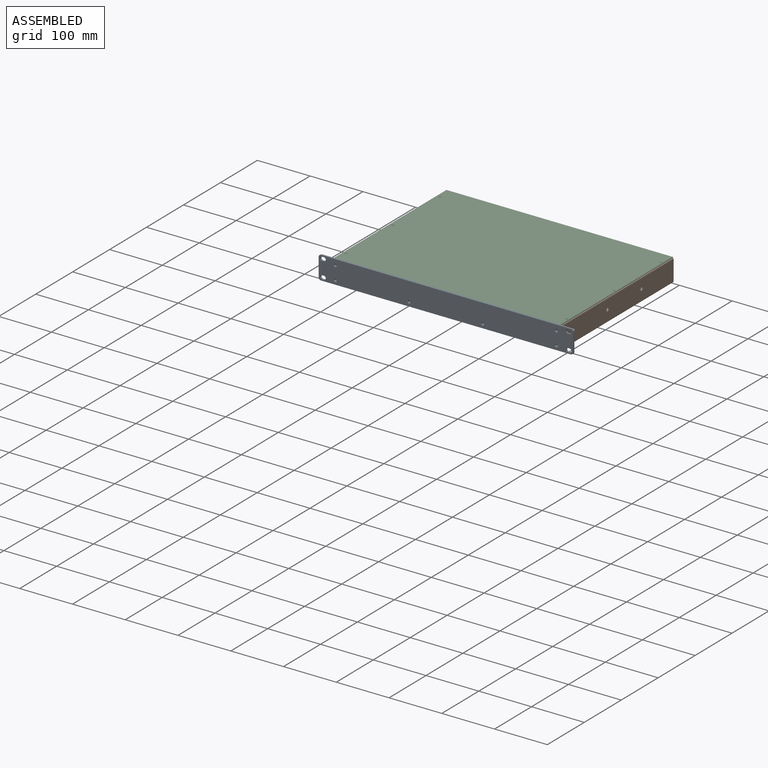
[diagram: assembled view]
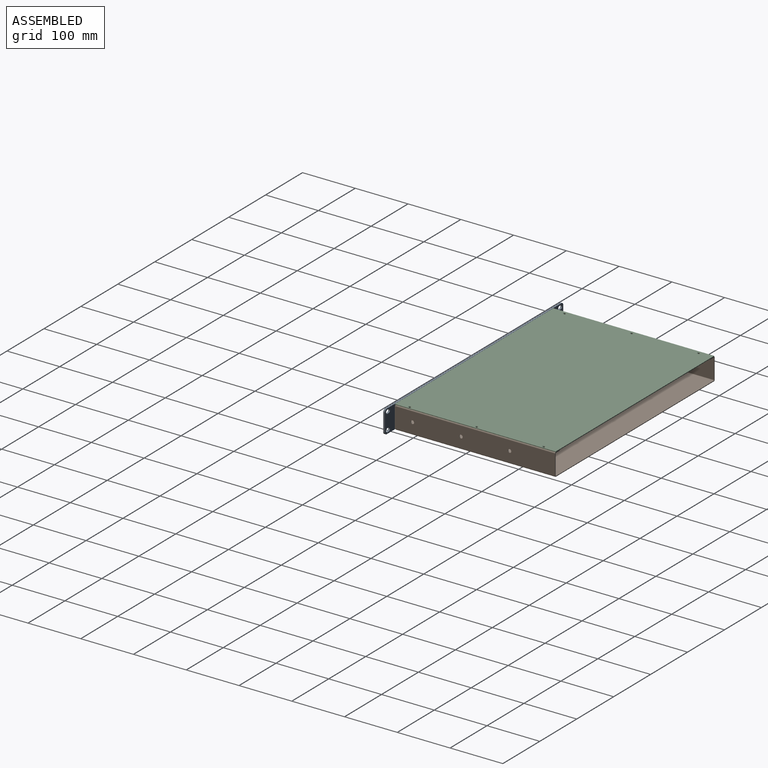
[diagram: assembled view, second angle]
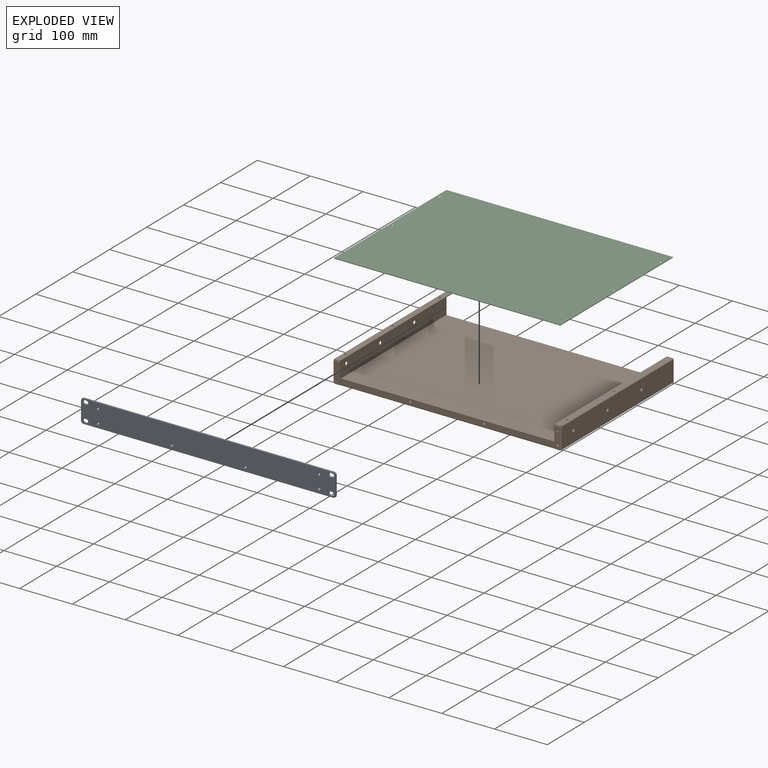
[diagram: exploded view]
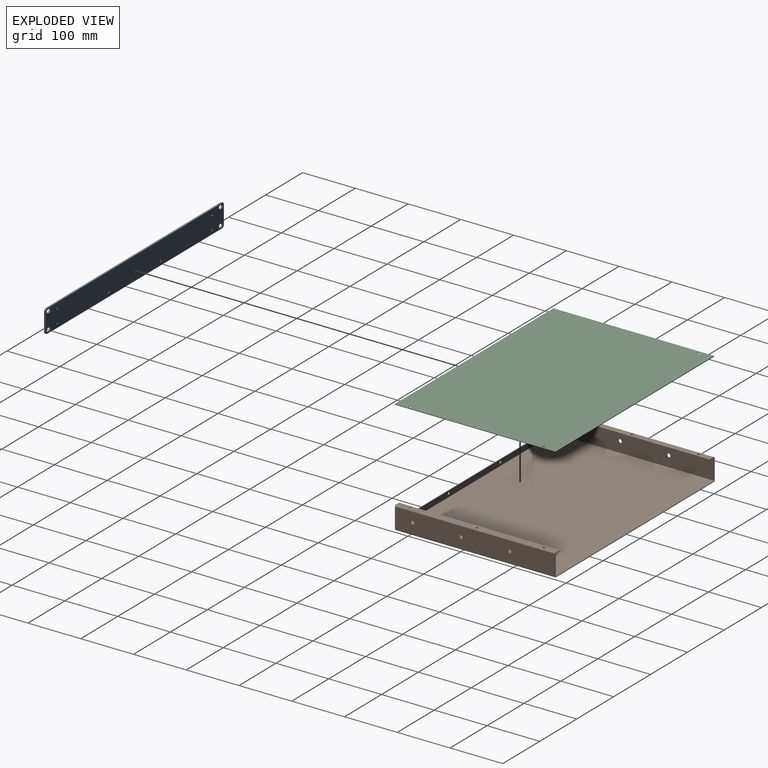
[diagram: exploded view, second angle]
ASSEMBLY  parts=3 mates=5
PART A: 38 faces, bbox 482.6x43.7x3.2 mm
  f0: plane 482.6x43.69mm, normal (0,0,1), area 20648.1mm2, adj f2,f3,f4,f5,f6,f7,f8,f9
  f1: plane 482.6x43.69mm, normal (0,0,-1), area 20756.4mm2, adj f2,f3,f4,f5,f6,f7,f8,f9
  f2: cylinder r=4.75mm len=4.75mm, axis (0,0,-1), area 23.7mm2, adj f0,f1,f3,f9
  f3: plane 473.1x3.18mm, normal (0,1,0), area 1502.1mm2, adj f0,f1,f2,f4
  f4: cylinder r=4.75mm len=4.75mm, axis (0,0,-1), area 23.7mm2, adj f0,f1,f3,f5
  f5: plane 34.19x3.18mm, normal (-1,0,0), area 108.5mm2, adj f0,f1,f4,f6
  f6: cylinder r=4.75mm len=4.75mm, axis (0,0,-1), area 23.7mm2, adj f0,f1,f5,f7
  f7: plane 473.1x3.18mm, normal (0,-1,0), area 1502.1mm2, adj f0,f1,f6,f8
  f8: cylinder r=4.75mm len=4.75mm, axis (0,0,-1), area 23.7mm2, adj f0,f1,f7,f9
  f9: plane 34.19x3.18mm, normal (1,0,0), area 108.5mm2, adj f0,f1,f2,f8
  f10: cylinder r=3.53mm len=7.06mm, axis (0,0,1), area 35.2mm2, adj f0,f1,f11,f13
  f11: plane 3.25x3.18mm, normal (0,-1,0), area 10.3mm2, adj f0,f1,f10,f12
  f12: cylinder r=3.53mm len=7.06mm, axis (0,0,1), area 35.2mm2, adj f0,f1,f11,f13
  f13: plane 3.25x3.18mm, normal (0,1,0), area 10.3mm2, adj f0,f1,f10,f12
  f14: cylinder r=3.53mm len=7.06mm, axis (0,0,1), area 35.2mm2, adj f0,f1,f15,f17
  f15: plane 3.25x3.18mm, normal (0,-1,0), area 10.3mm2, adj f0,f1,f14,f16
  f16: cylinder r=3.53mm len=7.06mm, axis (0,0,1), area 35.2mm2, adj f0,f1,f15,f17
  f17: plane 3.25x3.18mm, normal (0,1,0), area 10.3mm2, adj f0,f1,f14,f16
  f18: cylinder r=3.53mm len=7.06mm, axis (0,0,1), area 35.2mm2, adj f0,f1,f19,f21
  f19: plane 3.25x3.18mm, normal (0,-1,0), area 10.3mm2, adj f0,f1,f18,f20
  f20: cylinder r=3.53mm len=7.06mm, axis (0,0,1), area 35.2mm2, adj f0,f1,f19,f21
  f21: plane 3.25x3.18mm, normal (0,1,0), area 10.3mm2, adj f0,f1,f18,f20
  f22: cylinder r=3.53mm len=7.06mm, axis (0,0,1), area 35.2mm2, adj f0,f1,f23,f25
  f23: plane 3.25x3.18mm, normal (0,-1,0), area 10.3mm2, adj f0,f1,f22,f24
  f24: cylinder r=3.53mm len=7.06mm, axis (0,0,1), area 35.2mm2, adj f0,f1,f23,f25
  f25: plane 3.25x3.18mm, normal (0,1,0), area 10.3mm2, adj f0,f1,f22,f24
  f26: cylinder r=1.78mm len=3.56mm, axis (0,0,1), area 24.2mm2, adj f1,f27
  f27: cone r=1.78mm half-angle=50deg, axis (0,0,1), area 23.6mm2, adj f0,f26
  f28: cylinder r=1.78mm len=3.56mm, axis (0,0,1), area 24.2mm2, adj f1,f29
  f29: cone r=1.78mm half-angle=50deg, axis (0,0,1), area 23.6mm2, adj f0,f28
  f30: cylinder r=1.78mm len=3.56mm, axis (0,0,1), area 24.2mm2, adj f1,f31
  f31: cone r=1.78mm half-angle=50deg, axis (0,0,1), area 23.6mm2, adj f0,f30
  f32: cylinder r=1.78mm len=3.56mm, axis (0,0,1), area 24.2mm2, adj f1,f33
  f33: cone r=1.78mm half-angle=50deg, axis (0,0,1), area 23.6mm2, adj f0,f32
  f34: cylinder r=1.78mm len=3.56mm, axis (0,0,1), area 24.2mm2, adj f1,f35
  f35: cone r=1.78mm half-angle=50deg, axis (0,0,1), area 23.6mm2, adj f0,f34
  f36: cylinder r=1.78mm len=3.56mm, axis (0,0,1), area 24.2mm2, adj f1,f37
  f37: cone r=1.78mm half-angle=50deg, axis (0,0,1), area 23.6mm2, adj f0,f36
PART B: 94 faces, bbox 431.8x304.8x42.2 mm
  f0: plane 1.4x1.27mm, normal (-1,0,0), area 1.8mm2, adj f2,f3,f4,f80
  f1: plane 10.08x1.27mm, normal (0,-1,0), area 12.8mm2, adj f2,f3,f6,f11
  f2: plane 427.74x304.17mm, normal (0,0,-1), area 129530.2mm2, adj f0,f1,f4,f5,f6,f7,f8,f9
  f3: plane 427.74x304.17mm, normal (0,0,1), area 129530.2mm2, adj f0,f1,f4,f5,f6,f7,f8,f9
  f4: plane 10.08x1.27mm, normal (0,-1,0), area 12.8mm2, adj f0,f2,f3,f7
  f5: plane 427.74x1.27mm, normal (0,1,0), area 543.2mm2, adj f2,f3,f45,f79
  f6: plane 1.4x1.27mm, normal (1,0,0), area 1.8mm2, adj f1,f2,f3,f44
  f7: plane 1.87x1.27mm, normal (1,0,0), area 2.4mm2, adj f2,f3,f4,f8
  f8: cylinder r=0.67mm len=1.35mm, axis (0,0,1), area 2.7mm2, adj f2,f3,f7,f9
  f9: plane 1.27x0.47mm, normal (-1,0,0), area 0.6mm2, adj f2,f3,f8,f90
  f10: cylinder r=0.67mm len=1.35mm, axis (0,0,1), area 2.7mm2, adj f2,f3,f11,f12
  f11: plane 1.87x1.27mm, normal (-1,0,0), area 2.4mm2, adj f1,f2,f3,f10
  f12: plane 1.27x0.47mm, normal (1,0,0), area 0.6mm2, adj f2,f3,f10,f91
  f13: plane 38.1x1.27mm, normal (0,1,0), area 48.4mm2, adj f17,f18,f29,f45
  f14: cylinder r=3.17mm len=6.35mm, axis (1,0,0), area 25.3mm2, adj f17,f18
  f15: cylinder r=3.17mm len=6.35mm, axis (1,0,0), area 25.3mm2, adj f17,f18
  f16: cylinder r=3.17mm len=6.35mm, axis (1,0,0), area 25.3mm2, adj f17,f18
  f17: plane 302.77x38.1mm, normal (1,0,0), area 11440.5mm2, adj f13,f14,f15,f16,f31,f42,f46
  f18: plane 302.77x38.1mm, normal (-1,0,0), area 11440.5mm2, adj f13,f14,f15,f16,f32,f43,f47
  f19: plane 1.4x1.27mm, normal (1,0,0), area 1.8mm2, adj f21,f27,f28,f30
  f20: plane 10.67x1.27mm, normal (0,-1,0), area 13.5mm2, adj f21,f26,f27,f28
  f21: plane 1.27x0.64mm, normal (1,0,0), area 0.8mm2, adj f19,f20,f27,f28
  f22: plane 10.67x1.27mm, normal (0,1,0), area 13.5mm2, adj f26,f27,f28,f29
  f23: cylinder r=2.11mm len=4.22mm, axis (0,0,1), area 16.8mm2, adj f27,f28
  f24: cylinder r=2.11mm len=4.22mm, axis (0,0,1), area 16.8mm2, adj f27,f28
  f25: cylinder r=2.11mm len=4.22mm, axis (0,0,1), area 16.8mm2, adj f27,f28
  f26: plane 304.8x1.27mm, normal (-1,0,0), area 387.1mm2, adj f20,f22,f27,f28
  f27: plane 304.8x10.67mm, normal (0,0,1), area 3209.7mm2, adj f19,f20,f21,f22,f23,f24,f25,f26
  f28: plane 304.8x10.67mm, normal (0,0,-1), area 3209.7mm2, adj f19,f20,f21,f22,f23,f24,f25,f26
  f29: plane 2.03x2.03mm, normal (0,1,0), area 2.8mm2, adj f13,f22,f31,f32
  f30: plane 2.03x2.03mm, normal (0,-1,0), area 2.8mm2, adj f19,f31,f32,f41
  f31: cylinder r=2.03mm len=302.77mm, axis (0,1,0), area 966.4mm2, adj f17,f27,f29,f30
  f32: cylinder r=0.76mm len=302.77mm, axis (0,1,0), area 362.4mm2, adj f18,f28,f29,f30
  f33: plane 10.67x1.27mm, normal (0,0,-1), area 13.5mm2, adj f37,f38,f39,f40
  f34: plane 10.67x1.27mm, normal (0,0,1), area 13.5mm2, adj f37,f38,f39,f41
  f35: cylinder r=2.11mm len=4.22mm, axis (0,-1,0), area 16.8mm2, adj f38,f39
  f36: cylinder r=2.11mm len=4.22mm, axis (0,-1,0), area 16.8mm2, adj f38,f39
  f37: plane 38.1x1.27mm, normal (-1,0,0), area 48.4mm2, adj f33,f34,f38,f39
  f38: plane 38.1x10.67mm, normal (0,-1,0), area 378.5mm2, adj f33,f34,f35,f36,f37,f42
  f39: plane 38.1x10.67mm, normal (0,1,0), area 378.5mm2, adj f33,f34,f35,f36,f37,f43
  f40: plane 2.03x2.03mm, normal (0,0,-1), area 2.8mm2, adj f33,f42,f43,f44
  f41: plane 2.03x2.03mm, normal (0,0,1), area 2.8mm2, adj f30,f34,f42,f43
  f42: cylinder r=2.03mm len=38.1mm, axis (0,0,-1), area 121.6mm2, adj f17,f38,f40,f41
  f43: cylinder r=0.76mm len=38.1mm, axis (0,0,-1), area 45.6mm2, adj f18,f39,f40,f41
  f44: plane 2.03x2.03mm, normal (0,-1,0), area 2.8mm2, adj f6,f40,f46,f47
  f45: plane 2.03x2.03mm, normal (0,1,0), area 2.8mm2, adj f5,f13,f46,f47
  f46: cylinder r=2.03mm len=302.77mm, axis (0,-1,0), area 966.4mm2, adj f2,f17,f44,f45
  f47: cylinder r=0.76mm len=302.77mm, axis (0,-1,0), area 362.4mm2, adj f3,f18,f44,f45
  f48: plane 38.1x1.27mm, normal (0,1,0), area 48.4mm2, adj f52,f53,f65,f79
  f49: cylinder r=3.17mm len=6.35mm, axis (-1,0,0), area 25.3mm2, adj f52,f53
  f50: cylinder r=3.17mm len=6.35mm, axis (-1,0,0), area 25.3mm2, adj f52,f53
  f51: cylinder r=3.17mm len=6.35mm, axis (-1,0,0), area 25.3mm2, adj f52,f53
  f52: plane 302.77x38.1mm, normal (-1,0,0), area 11440.5mm2, adj f48,f49,f50,f51,f66,f77,f81
  f53: plane 302.77x38.1mm, normal (1,0,0), area 11440.5mm2, adj f48,f49,f50,f51,f67,f78,f82
  f54: plane 10.67x1.27mm, normal (0,1,0), area 13.5mm2, adj f61,f62,f63,f65
  f55: plane 1.4x1.27mm, normal (-1,0,0), area 1.8mm2, adj f56,f62,f63,f64
  f56: plane 1.27x0.64mm, normal (-1,0,0), area 0.8mm2, adj f55,f57,f62,f63
  f57: plane 10.67x1.27mm, normal (0,-1,0), area 13.5mm2, adj f56,f61,f62,f63
  f58: cylinder r=2.11mm len=4.22mm, axis (0,0,1), area 16.8mm2, adj f62,f63
  f59: cylinder r=2.11mm len=4.22mm, axis (0,0,1), area 16.8mm2, adj f62,f63
  f60: cylinder r=2.11mm len=4.22mm, axis (0,0,1), area 16.8mm2, adj f62,f63
  f61: plane 304.8x1.27mm, normal (1,0,0), area 387.1mm2, adj f54,f57,f62,f63
  f62: plane 304.8x10.67mm, normal (0,0,1), area 3209.7mm2, adj f54,f55,f56,f57,f58,f59,f60,f61
  f63: plane 304.8x10.67mm, normal (0,0,-1), area 3209.7mm2, adj f54,f55,f56,f57,f58,f59,f60,f61
  f64: plane 2.03x2.03mm, normal (0,-1,0), area 2.8mm2, adj f55,f66,f67,f75
  f65: plane 2.03x2.03mm, normal (0,1,0), area 2.8mm2, adj f48,f54,f66,f67
  f66: cylinder r=2.03mm len=302.77mm, axis (0,-1,0), area 966.4mm2, adj f52,f62,f64,f65
  f67: cylinder r=0.76mm len=302.77mm, axis (0,-1,0), area 362.4mm2, adj f53,f63,f64,f65
  f68: plane 10.67x1.27mm, normal (0,0,1), area 13.5mm2, adj f72,f73,f74,f75
  f69: plane 10.67x1.27mm, normal (0,0,-1), area 13.5mm2, adj f72,f73,f74,f76
  f70: cylinder r=2.11mm len=4.22mm, axis (0,-1,0), area 16.8mm2, adj f73,f74
  f71: cylinder r=2.11mm len=4.22mm, axis (0,-1,0), area 16.8mm2, adj f73,f74
  f72: plane 38.1x1.27mm, normal (1,0,0), area 48.4mm2, adj f68,f69,f73,f74
  f73: plane 38.1x10.67mm, normal (0,-1,0), area 378.5mm2, adj f68,f69,f70,f71,f72,f77
  f74: plane 38.1x10.67mm, normal (0,1,0), area 378.5mm2, adj f68,f69,f70,f71,f72,f78
  f75: plane 2.03x2.03mm, normal (0,0,1), area 2.8mm2, adj f64,f68,f77,f78
  f76: plane 2.03x2.03mm, normal (0,0,-1), area 2.8mm2, adj f69,f77,f78,f80
  f77: cylinder r=2.03mm len=38.1mm, axis (0,0,1), area 121.6mm2, adj f52,f73,f75,f76
  f78: cylinder r=0.76mm len=38.1mm, axis (0,0,1), area 45.6mm2, adj f53,f74,f75,f76
  f79: plane 2.03x2.03mm, normal (0,1,0), area 2.8mm2, adj f5,f48,f81,f82
  f80: plane 2.03x2.03mm, normal (0,-1,0), area 2.8mm2, adj f0,f76,f81,f82
  f81: cylinder r=2.03mm len=302.77mm, axis (0,1,0), area 966.4mm2, adj f2,f52,f79,f80
  f82: cylinder r=0.76mm len=302.77mm, axis (0,1,0), area 362.4mm2, adj f3,f53,f79,f80
  f83: plane 10.67x1.27mm, normal (-1,0,0), area 13.5mm2, adj f87,f88,f89,f90
  f84: plane 10.67x1.27mm, normal (1,0,0), area 13.5mm2, adj f87,f88,f89,f91
  f85: cylinder r=2.11mm len=4.22mm, axis (0,-1,0), area 16.8mm2, adj f88,f89
  f86: cylinder r=2.11mm len=4.22mm, axis (0,-1,0), area 16.8mm2, adj f88,f89
  f87: plane 404.88x1.27mm, normal (0,0,1), area 514.2mm2, adj f83,f84,f88,f89
  f88: plane 404.88x10.67mm, normal (0,-1,0), area 4291.3mm2, adj f83,f84,f85,f86,f87,f92
  f89: plane 404.88x10.67mm, normal (0,1,0), area 4291.3mm2, adj f83,f84,f85,f86,f87,f93
  f90: plane 2.03x2.03mm, normal (-1,0,0), area 2.8mm2, adj f9,f83,f92,f93
  f91: plane 2.03x2.03mm, normal (1,0,0), area 2.8mm2, adj f12,f84,f92,f93
  f92: cylinder r=2.03mm len=404.88mm, axis (-1,0,0), area 1292.3mm2, adj f2,f88,f90,f91
  f93: cylinder r=0.76mm len=404.88mm, axis (-1,0,0), area 484.6mm2, adj f3,f89,f90,f91
PART C: 18 faces, bbox 429.3x304.8x1.3 mm
  f0: plane 429.26x1.27mm, normal (0,-1,0), area 545.2mm2, adj f1,f3,f4,f5
  f1: plane 304.8x1.27mm, normal (1,0,0), area 387.1mm2, adj f0,f2,f4,f5
  f2: plane 429.26x1.27mm, normal (0,1,0), area 545.2mm2, adj f1,f3,f4,f5
  f3: plane 304.8x1.27mm, normal (-1,0,0), area 387.1mm2, adj f0,f2,f4,f5
  f4: plane 429.26x304.8mm, normal (0,0,1), area 130670.6mm2, adj f0,f1,f2,f3,f7,f9,f11,f13
  f5: plane 429.26x304.8mm, normal (0,0,-1), area 130778.9mm2, adj f0,f1,f2,f3,f6,f8,f10,f12
  f6: cylinder r=1.78mm len=3.56mm, axis (0,0,1), area 2.9mm2, adj f5,f7
  f7: cone r=1.78mm half-angle=50deg, axis (0,0,1), area 23.6mm2, adj f4,f6
  f8: cylinder r=1.78mm len=3.56mm, axis (0,0,1), area 2.9mm2, adj f5,f9
  f9: cone r=1.78mm half-angle=50deg, axis (0,0,1), area 23.6mm2, adj f4,f8
  f10: cylinder r=1.78mm len=3.56mm, axis (0,0,1), area 2.9mm2, adj f5,f11
  f11: cone r=1.78mm half-angle=50deg, axis (0,0,1), area 23.6mm2, adj f4,f10
  f12: cylinder r=1.78mm len=3.56mm, axis (0,0,1), area 2.9mm2, adj f5,f13
  f13: cone r=1.78mm half-angle=50deg, axis (0,0,1), area 23.6mm2, adj f4,f12
  f14: cylinder r=1.78mm len=3.56mm, axis (0,0,1), area 2.9mm2, adj f5,f15
  f15: cone r=1.78mm half-angle=50deg, axis (0,0,1), area 23.6mm2, adj f4,f14
  f16: cylinder r=1.78mm len=3.56mm, axis (0,0,1), area 2.9mm2, adj f5,f17
  f17: cone r=1.78mm half-angle=50deg, axis (0,0,1), area 23.6mm2, adj f4,f16
PLACE A rot(axis=(1,0,0),90deg) t=(193.32,-19.27,33.05)mm
PLACE B t=(-22.58,-19.27,11.2)mm fixed
PLACE C t=(193.32,133.13,53.37)mm
MATE cylindrical B.f35 <-> A.f30  axis (0,-1,0) through (402.87,-18.63,44.22)mm
MATE cylindrical B.f71 <-> A.f28  axis (0,-1,0) through (-16.23,-19.27,18.82)mm
MATE cylindrical B.f60 <-> C.f6  axis (0,0,1) through (-16.23,6.13,53.37)mm
MATE planar B.f27 <-> C.f5  axis (0,0,1) through (401.85,285.53,53.37)mm
MATE cylindrical B.f23 <-> C.f12  axis (0,0,1) through (402.87,260.13,52.73)mm
